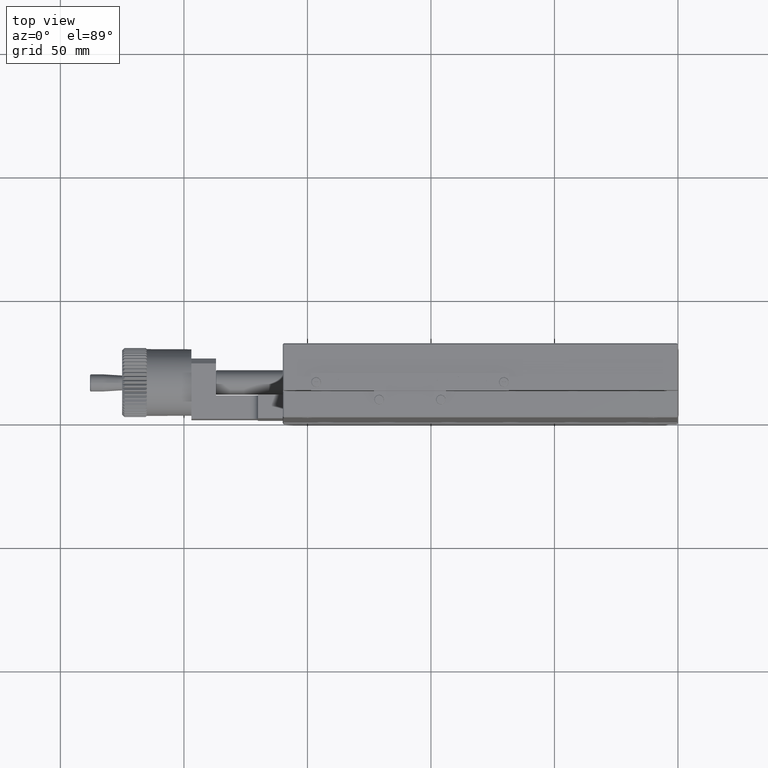
[diagram: clean part render]
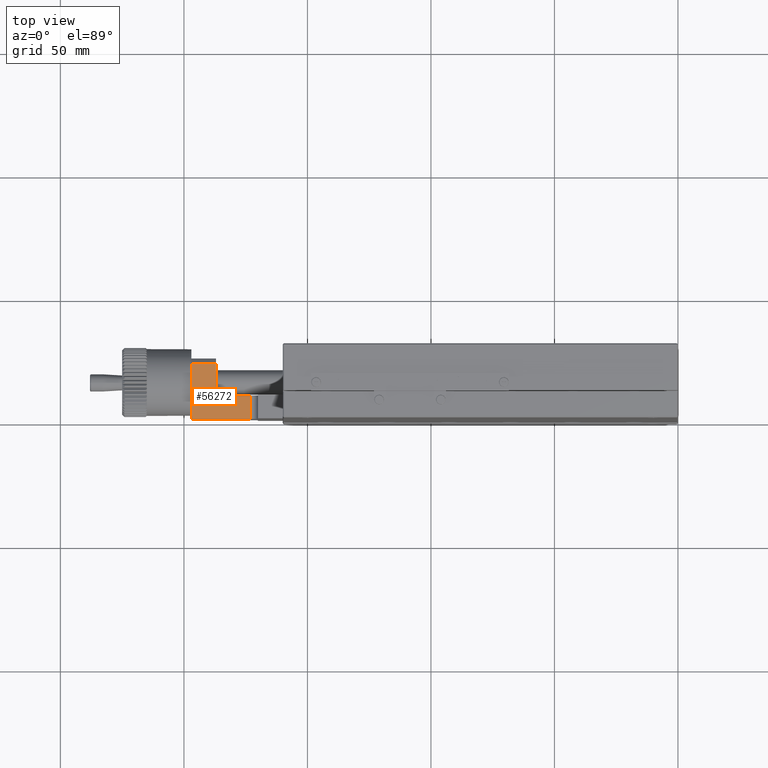
[diagram: same view with one face highlighted and labeled with its STEP entity id]
A machine part, top view. The second image highlights one B-rep face of the part: STEP entity #56272.
In plain terms, the highlighted planar face has unit normal (0, 0, -1).
Its self-contained STEP definition (entity closure, byte-faithful):
#1187 = ORIENTED_EDGE ( 'NONE', *, *, #25639, .T. ) ;
#1582 = FACE_OUTER_BOUND ( 'NONE', #57301, .T. ) ;
#2217 = DIRECTION ( 'NONE',  ( -0.000000000000000000, 1.000000000000000000, -0.000000000000000000 ) ) ;
#3023 = VERTEX_POINT ( 'NONE', #52964 ) ;
#3515 = DIRECTION ( 'NONE',  ( 0.000000000000000000, -1.000000000000000000, -0.000000000000000000 ) ) ;
#5408 = CARTESIAN_POINT ( 'NONE',  ( -196.9999999999999716, 0.5000000000000001110, 15.50000000000000000 ) ) ;
#5825 = VECTOR ( 'NONE', #52259, 1000.000000000000000 ) ;
#6292 = ORIENTED_EDGE ( 'NONE', *, *, #69646, .T. ) ;
#7272 = CARTESIAN_POINT ( 'NONE',  ( -187.0000000000000000, 25.00000000000000000, 15.50000000000000000 ) ) ;
#8613 = LINE ( 'NONE', #9327, #55628 ) ;
#9157 = LINE ( 'NONE', #52934, #53427 ) ;
#9327 = CARTESIAN_POINT ( 'NONE',  ( -197.0000000000000000, 25.00000000000000000, 15.50000000000000000 ) ) ;
#10046 = VERTEX_POINT ( 'NONE', #28039 ) ;
#10642 = ORIENTED_EDGE ( 'NONE', *, *, #15795, .F. ) ;
#12100 = DIRECTION ( 'NONE',  ( -1.000000000000000000, 0.000000000000000000, -0.000000000000000000 ) ) ;
#13540 = DIRECTION ( 'NONE',  ( 1.000000000000000000, 0.000000000000000000, -0.000000000000000000 ) ) ;
#15795 = EDGE_CURVE ( 'NONE', #10046, #21104, #31050, .T. ) ;
#17797 = VECTOR ( 'NONE', #2217, 1000.000000000000000 ) ;
#18569 = LINE ( 'NONE', #39725, #43014 ) ;
#21104 = VERTEX_POINT ( 'NONE', #39845 ) ;
#24046 = LINE ( 'NONE', #24774, #17797 ) ;
#24774 = CARTESIAN_POINT ( 'NONE',  ( -173.0000000000000284, 25.00000000000000000, 15.49999999999996803 ) ) ;
#25354 = EDGE_CURVE ( 'NONE', #3023, #49514, #9157, .T. ) ;
#25639 = EDGE_CURVE ( 'NONE', #41382, #34079, #18569, .T. ) ;
#28039 = CARTESIAN_POINT ( 'NONE',  ( -196.9999999999999716, 23.00000000000000355, 15.50000000000000000 ) ) ;
#28969 = ORIENTED_EDGE ( 'NONE', *, *, #25354, .F. ) ;
#31050 = LINE ( 'NONE', #57384, #5825 ) ;
#34079 = VERTEX_POINT ( 'NONE', #42306 ) ;
#34592 = DIRECTION ( 'NONE',  ( -0.000000000000000000, -1.000000000000000000, -0.000000000000000000 ) ) ;
#39725 = CARTESIAN_POINT ( 'NONE',  ( -173.0000000000000284, 0.5000000000000000000, 15.50000000000000000 ) ) ;
#39836 = DIRECTION ( 'NONE',  ( 0.000000000000000000, 0.000000000000000000, -1.000000000000000000 ) ) ;
#39845 = CARTESIAN_POINT ( 'NONE',  ( -186.9999999999999716, 23.00000000000000355, 15.50000000000000000 ) ) ;
#41382 = VERTEX_POINT ( 'NONE', #5408 ) ;
#42306 = CARTESIAN_POINT ( 'NONE',  ( -173.0000000000000284, 0.5000000000000004441, 15.49999999999998401 ) ) ;
#42846 = CARTESIAN_POINT ( 'NONE',  ( -173.0000000000000284, 10.00000000000000000, 15.49999999999998579 ) ) ;
#43014 = VECTOR ( 'NONE', #61615, 1000.000000000000000 ) ;
#43832 = ORIENTED_EDGE ( 'NONE', *, *, #62331, .T. ) ;
#45183 = LINE ( 'NONE', #7272, #66086 ) ;
#49514 = VERTEX_POINT ( 'NONE', #42846 ) ;
#51873 = PLANE ( 'NONE',  #54389 ) ;
#52259 = DIRECTION ( 'NONE',  ( 1.000000000000000000, -0.000000000000000000, 0.000000000000000000 ) ) ;
#52934 = CARTESIAN_POINT ( 'NONE',  ( -160.0000000000000000, 10.00000000000000000, 15.50000000000000178 ) ) ;
#52964 = CARTESIAN_POINT ( 'NONE',  ( -186.9999999999999716, 10.00000000000000000, 15.50000000000000000 ) ) ;
#53427 = VECTOR ( 'NONE', #13540, 1000.000000000000000 ) ;
#54389 = AXIS2_PLACEMENT_3D ( 'NONE', #62824, #39836, #12100 ) ;
#55628 = VECTOR ( 'NONE', #3515, 1000.000000000000000 ) ;
#56272 = ADVANCED_FACE ( 'NONE', ( #1582 ), #51873, .F. ) ;
#57301 = EDGE_LOOP ( 'NONE', ( #10642, #6292, #1187, #43832, #28969, #58794 ) ) ;
#57384 = CARTESIAN_POINT ( 'NONE',  ( -197.0000000000000000, 23.00000000000000000, 15.50000000000000000 ) ) ;
#58794 = ORIENTED_EDGE ( 'NONE', *, *, #68119, .F. ) ;
#61615 = DIRECTION ( 'NONE',  ( 1.000000000000000000, 0.000000000000000000, -0.000000000000000000 ) ) ;
#62331 = EDGE_CURVE ( 'NONE', #34079, #49514, #24046, .T. ) ;
#62824 = CARTESIAN_POINT ( 'NONE',  ( -197.0000000000000000, 25.00000000000000000, 15.50000000000000000 ) ) ;
#66086 = VECTOR ( 'NONE', #34592, 1000.000000000000000 ) ;
#68119 = EDGE_CURVE ( 'NONE', #21104, #3023, #45183, .T. ) ;
#69646 = EDGE_CURVE ( 'NONE', #10046, #41382, #8613, .T. ) ;